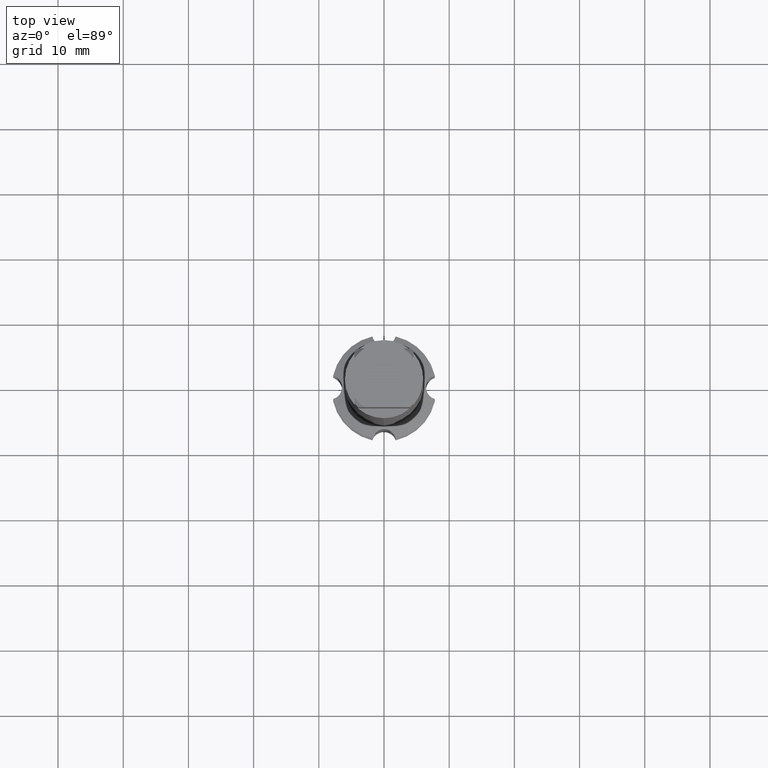
[diagram: clean part render]
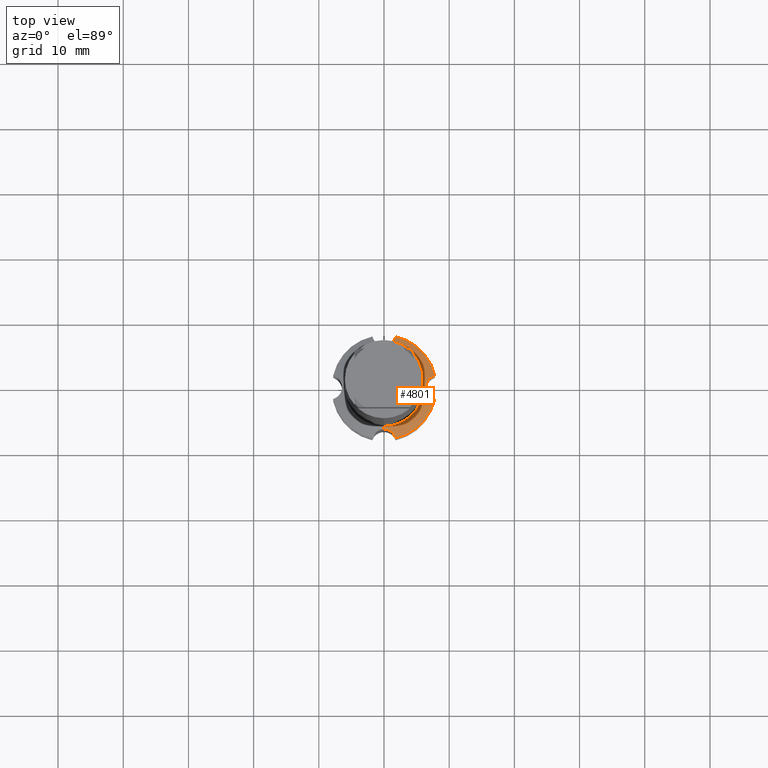
[diagram: same view with one face highlighted and labeled with its STEP entity id]
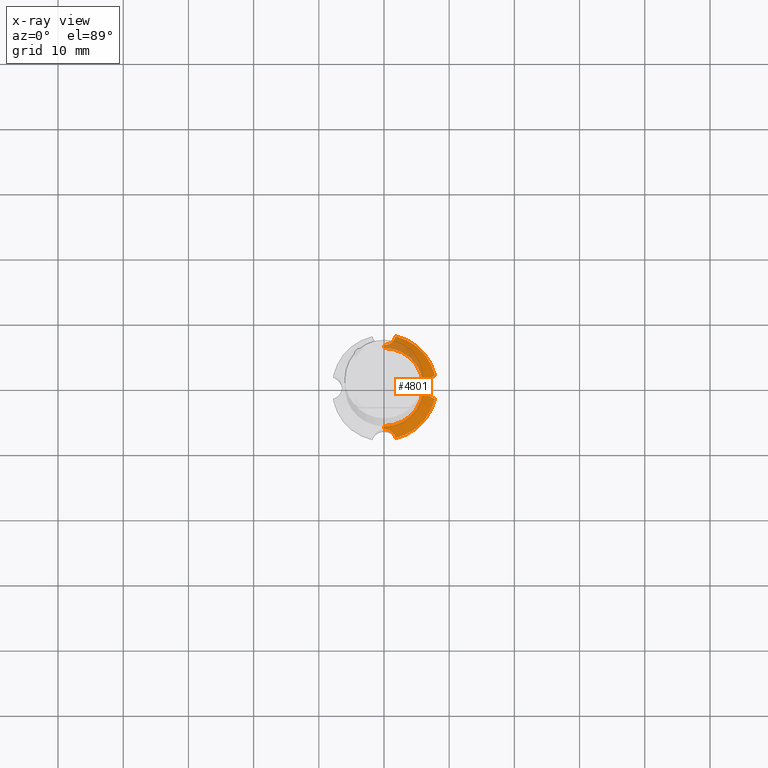
[diagram: x-ray of the same camera — body ghosted, the highlighted face saturated]
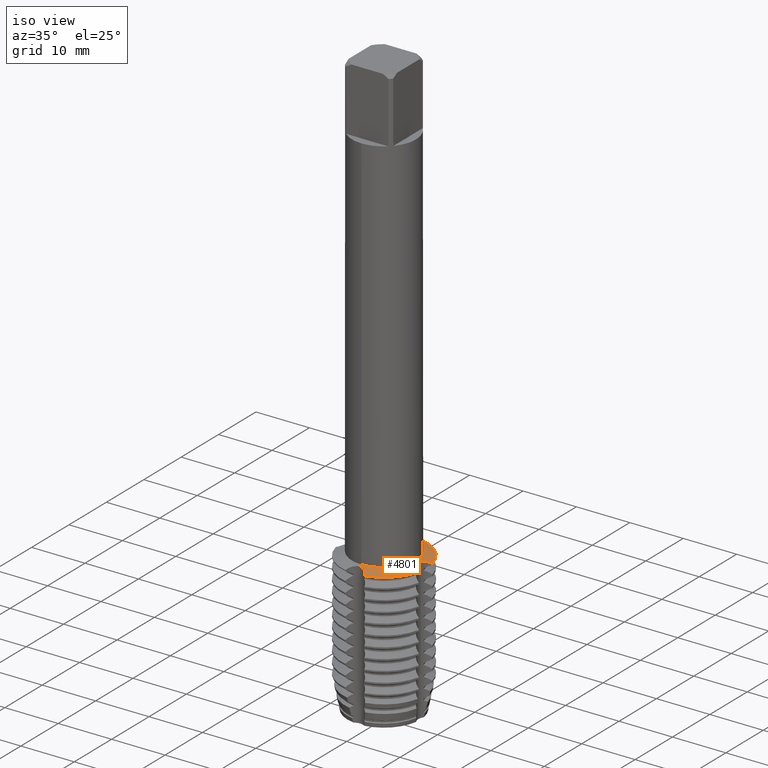
[diagram: same view with one face highlighted and labeled with its STEP entity id]
A machine part, top view. The second image highlights one B-rep face of the part: STEP entity #4801.
The next image is the same camera in x-ray: the body ghosted, the highlighted face saturated — about 19% of this face is hidden behind the body in this view.
A second angle (iso view) of the same face is appended — the face is thin or edge-on in the first view.
In plain terms, the highlighted conical surface has half-angle 70.158 deg.
Its self-contained STEP definition (entity closure, byte-faithful):
#1863=VERTEX_POINT('',#5108);
#1937=VERTEX_POINT('',#5188);
#1945=EDGE_CURVE('',#3605,#3453,#5197,.T.);
#2161=VERTEX_POINT('',#5432);
#2467=EDGE_CURVE('',#3963,#3453,#5763,.T.);
#2721=EDGE_CURVE('',#2161,#3605,#6041,.T.);
#2803=VERTEX_POINT('',#6136);
#3035=EDGE_CURVE('',#3963,#3225,#6387,.T.);
#3049=EDGE_CURVE('',#1937,#1863,#6402,.T.);
#3225=VERTEX_POINT('',#6591);
#3319=EDGE_CURVE('',#1937,#4679,#6691,.T.);
#3431=EDGE_CURVE('',#2161,#1863,#6809,.T.);
#3453=VERTEX_POINT('',#6835);
#3605=VERTEX_POINT('',#6997);
#3963=VERTEX_POINT('',#7385);
#4305=EDGE_CURVE('',#2803,#3225,#7757,.T.);
#4373=EDGE_CURVE('',#2803,#4679,#7832,.T.);
#4679=VERTEX_POINT('',#8166);
#4801=ADVANCED_FACE('',(#8300),#8301,.T.);
#5108=CARTESIAN_POINT('',(1.77972067254717,-7.79952526297007,-84.0));
#5188=CARTESIAN_POINT('',(-1.29385885950753E-010,-6.44546894861391,-83.4390569243866));
#5197=B_SPLINE_CURVE_WITH_KNOTS('',3,(#8984,#8985,#8986,#8987,#8988,#8989,#8990,#8991,#8992,#8993,#8994,#8995,#8996,#8997,#8998,#8999,#9000,#9001),.UNSPECIFIED.,.F.,.F.,(4,2,2,2,2,2,2,2,4),(0.0,0.743907113125739,1.46095810134954,2.09713409270997,2.58940129921737,3.11455659787823,3.83983705860915,4.47842155471413,5.00062197485743),.UNSPECIFIED.);
#5432=CARTESIAN_POINT('',(7.79952526297007,-1.77972067254717,-84.0));
#5763=CIRCLE('',#10158,8.0);
#6041=B_SPLINE_CURVE_WITH_KNOTS('',3,(#10638,#10639,#10640,#10641,#10642,#10643,#10644,#10645,#10646,#10647,#10648,#10649,#10650,#10651,#10652,#10653,#10654,#10655),.UNSPECIFIED.,.F.,.F.,(4,2,2,2,2,2,2,2,4),(0.0,0.743907113125739,1.46095810134954,2.09713409270997,2.58940129921737,3.11455659787823,3.83983705860915,4.47842155471413,5.00062197485743),.UNSPECIFIED.);
#6136=CARTESIAN_POINT('',(0.0,6.0,-83.278312163513));
#6387=B_SPLINE_CURVE_WITH_KNOTS('',3,(#11284,#11285,#11286,#11287,#11288,#11289,#11290,#11291,#11292,#11293,#11294,#11295,#11296,#11297,#11298,#11299,#11300,#11301),.UNSPECIFIED.,.F.,.F.,(4,2,2,2,2,2,2,2,4),(0.0,0.743907113125749,1.46095810134953,2.09713409270993,2.5894012992172,3.11455659787783,3.83983705860852,4.47842155471322,5.00062197485644),.UNSPECIFIED.);
#6402=B_SPLINE_CURVE_WITH_KNOTS('',3,(#11318,#11319,#11320,#11321,#11322,#11323,#11324,#11325,#11326,#11327,#11328,#11329,#11330,#11331,#11332,#11333,#11334,#11335),.UNSPECIFIED.,.F.,.F.,(4,2,2,2,2,2,2,2,4),(0.0,0.743907113125749,1.46095810134953,2.09713409270988,2.58940129921727,3.1145565978782,3.83983705860934,4.47842155471449,5.00062197485792),.UNSPECIFIED.);
#6591=CARTESIAN_POINT('',(1.29385825797603E-010,6.44546894861392,-83.4390569243866));
#6691=LINE('',#11926,#11927);
#6809=CIRCLE('',#12148,8.0);
#6835=CARTESIAN_POINT('',(7.79952526297007,1.77972067254717,-84.0));
#6997=CARTESIAN_POINT('',(6.44546894861391,-1.29387696714834E-010,-83.4390569243866));
#7385=CARTESIAN_POINT('',(1.77972067254717,7.79952526297007,-84.0));
#7757=LINE('',#13921,#13922);
#7832=CIRCLE('',#14049,6.0);
#8166=CARTESIAN_POINT('',(7.34763812293426E-016,-6.0,-83.278312163513));
#8300=FACE_OUTER_BOUND('',#15011,.T.);
#8301=CONICAL_SURFACE('',#15012,7.0,1.22449385246993);
#8984=CARTESIAN_POINT('',(7.79952526297008,-1.77972067254717,-84.0));
#8985=CARTESIAN_POINT('',(7.57333519677747,-1.72274788460475,-83.9158525160687));
#8986=CARTESIAN_POINT('',(7.36037883649537,-1.62246393047004,-83.8327188840648));
#8987=CARTESIAN_POINT('',(6.99022538646825,-1.34561552245522,-83.6817034979369));
#8988=CARTESIAN_POINT('',(6.83488275768263,-1.17452622721383,-83.6148861639171));
#8989=CARTESIAN_POINT('',(6.60800776130368,-0.799180942026867,-83.5143954223688));
#8990=CARTESIAN_POINT('',(6.53091235472515,-0.603991438880801,-83.4788132489954));
#8991=CARTESIAN_POINT('',(6.45336365993818,-0.238770410104933,-83.4428107146941));
#8992=CARTESIAN_POINT('',(6.43999079202227,-0.0752486855563723,-83.4364916322954));
#8993=CARTESIAN_POINT('',(6.4554923082499,0.26250437608726,-83.4437512278865));
#8994=CARTESIAN_POINT('',(6.48713438325891,0.434249049539478,-83.4586334954057));
#8995=CARTESIAN_POINT('',(6.61612351856246,0.824930968066917,-83.5178261958042));
#8996=CARTESIAN_POINT('',(6.73231569564685,1.03209495738231,-83.5703604888762));
#8997=CARTESIAN_POINT('',(7.01513130317356,1.3654533470297,-83.6916903805701));
#8998=CARTESIAN_POINT('',(7.17180116171571,1.49572585621941,-83.7567395740589));
#8999=CARTESIAN_POINT('',(7.48834961657399,1.67838946384341,-83.8823552169842));
#9000=CARTESIAN_POINT('',(7.64085740152842,1.73975538770794,-83.9409722029538));
#9001=CARTESIAN_POINT('',(7.79952526297008,1.77972067254717,-84.0));
#10158=AXIS2_PLACEMENT_3D('',#16253,#16254,#16255);
#10638=CARTESIAN_POINT('',(7.79952526297008,-1.77972067254717,-84.0));
#10639=CARTESIAN_POINT('',(7.57333519677747,-1.72274788460475,-83.9158525160687));
#10640=CARTESIAN_POINT('',(7.36037883649537,-1.62246393047004,-83.8327188840648));
#10641=CARTESIAN_POINT('',(6.99022538646825,-1.34561552245522,-83.6817034979369));
#10642=CARTESIAN_POINT('',(6.83488275768263,-1.17452622721383,-83.6148861639171));
#10643=CARTESIAN_POINT('',(6.60800776130368,-0.799180942026867,-83.5143954223688));
#10644=CARTESIAN_POINT('',(6.53091235472515,-0.603991438880801,-83.4788132489954));
#10645=CARTESIAN_POINT('',(6.45336365993818,-0.238770410104933,-83.4428107146941));
#10646=CARTESIAN_POINT('',(6.43999079202227,-0.0752486855563723,-83.4364916322954));
#10647=CARTESIAN_POINT('',(6.4554923082499,0.26250437608726,-83.4437512278865));
#10648=CARTESIAN_POINT('',(6.48713438325891,0.434249049539478,-83.4586334954057));
#10649=CARTESIAN_POINT('',(6.61612351856246,0.824930968066917,-83.5178261958042));
#10650=CARTESIAN_POINT('',(6.73231569564685,1.03209495738231,-83.5703604888762));
#10651=CARTESIAN_POINT('',(7.01513130317356,1.3654533470297,-83.6916903805701));
#10652=CARTESIAN_POINT('',(7.17180116171571,1.49572585621941,-83.7567395740589));
#10653=CARTESIAN_POINT('',(7.48834961657399,1.67838946384341,-83.8823552169842));
#10654=CARTESIAN_POINT('',(7.64085740152842,1.73975538770794,-83.9409722029538));
#10655=CARTESIAN_POINT('',(7.79952526297008,1.77972067254717,-84.0));
#11284=CARTESIAN_POINT('',(1.77972067254717,7.79952526297006,-84.0));
#11285=CARTESIAN_POINT('',(1.72274788460474,7.57333519677745,-83.9158525160687));
#11286=CARTESIAN_POINT('',(1.62246393047002,7.36037883649535,-83.8327188840648));
#11287=CARTESIAN_POINT('',(1.34561552245521,6.99022538646825,-83.6817034979369));
#11288=CARTESIAN_POINT('',(1.17452622721381,6.83488275768263,-83.6148861639171));
#11289=CARTESIAN_POINT('',(0.799180942026838,6.60800776130368,-83.5143954223688));
#11290=CARTESIAN_POINT('',(0.603991438880808,6.53091235472516,-83.4788132489954));
#11291=CARTESIAN_POINT('',(0.238770410105053,6.4533636599382,-83.4428107146942));
#11292=CARTESIAN_POINT('',(0.0752486855564631,6.43999079202228,-83.4364916322954));
#11293=CARTESIAN_POINT('',(-0.262504376087204,6.4554923082499,-83.4437512278865));
#11294=CARTESIAN_POINT('',(-0.434249049539422,6.4871343832589,-83.4586334954057));
#11295=CARTESIAN_POINT('',(-0.824930968066851,6.61612351856243,-83.5178261958042));
#11296=CARTESIAN_POINT('',(-1.03209495738225,6.73231569564682,-83.5703604888761));
#11297=CARTESIAN_POINT('',(-1.36545334702966,7.01513130317352,-83.6916903805701));
#11298=CARTESIAN_POINT('',(-1.49572585621937,7.17180116171566,-83.7567395740589));
#11299=CARTESIAN_POINT('',(-1.67838946384338,7.48834961657393,-83.8823552169842));
#11300=CARTESIAN_POINT('',(-1.73975538770792,7.64085740152839,-83.9409722029538));
#11301=CARTESIAN_POINT('',(-1.77972067254716,7.79952526297006,-84.0));
#11318=CARTESIAN_POINT('',(-1.77972067254718,-7.79952526297008,-84.0));
#11319=CARTESIAN_POINT('',(-1.72274788460475,-7.57333519677746,-83.9158525160687));
#11320=CARTESIAN_POINT('',(-1.62246393047004,-7.36037883649537,-83.8327188840648));
#11321=CARTESIAN_POINT('',(-1.34561552245523,-6.99022538646826,-83.6817034979369));
#11322=CARTESIAN_POINT('',(-1.17452622721384,-6.83488275768263,-83.6148861639171));
#11323=CARTESIAN_POINT('',(-0.799180942026883,-6.60800776130369,-83.5143954223688));
#11324=CARTESIAN_POINT('',(-0.603991438880815,-6.53091235472515,-83.4788132489953));
#11325=CARTESIAN_POINT('',(-0.238770410104924,-6.45336365993817,-83.4428107146941));
#11326=CARTESIAN_POINT('',(-0.0752486855563721,-6.43999079202227,-83.4364916322954));
#11327=CARTESIAN_POINT('',(0.262504376087265,-6.45549230824989,-83.4437512278865));
#11328=CARTESIAN_POINT('',(0.434249049539494,-6.48713438325891,-83.4586334954057));
#11329=CARTESIAN_POINT('',(0.824930968066907,-6.61612351856245,-83.5178261958042));
#11330=CARTESIAN_POINT('',(1.0320949573823,-6.73231569564684,-83.5703604888762));
#11331=CARTESIAN_POINT('',(1.36545334702968,-7.01513130317354,-83.6916903805701));
#11332=CARTESIAN_POINT('',(1.4957258562194,-7.17180116171569,-83.7567395740589));
#11333=CARTESIAN_POINT('',(1.67838946384341,-7.48834961657398,-83.8823552169842));
#11334=CARTESIAN_POINT('',(1.73975538770794,-7.64085740152842,-83.9409722029538));
#11335=CARTESIAN_POINT('',(1.77972067254717,-7.79952526297008,-84.0));
#11926=CARTESIAN_POINT('',(8.57224447675664E-016,-7.0,-83.6391560817565));
#11927=VECTOR('',#17111,1.0);
#12148=AXIS2_PLACEMENT_3D('',#17204,#17205,#17206);
#13921=CARTESIAN_POINT('',(-8.57224447675664E-016,7.0,-83.6391560817565));
#13922=VECTOR('',#18273,1.0);
#14049=AXIS2_PLACEMENT_3D('',#18358,#18359,#18360);
#15011=EDGE_LOOP('',(#18807,#18808,#18809,#18810,#18811,#18812,#18813,#18814,#18815));
#15012=AXIS2_PLACEMENT_3D('',#18816,#18817,#18818);
#16253=CARTESIAN_POINT('',(0.0,0.0,-84.0));
#16254=DIRECTION('',(0.0,0.0,-1.0));
#16255=DIRECTION('',(0.0,1.0,0.0));
#17111=DIRECTION('',(-1.15190657141193E-016,0.940634162003545,0.339422116651065));
#17204=CARTESIAN_POINT('',(0.0,0.0,-84.0));
#17205=DIRECTION('',(0.0,0.0,-1.0));
#17206=DIRECTION('',(0.0,1.0,0.0));
#18273=DIRECTION('',(-1.15190657141193E-016,0.940634162003545,-0.339422116651065));
#18358=CARTESIAN_POINT('',(0.0,0.0,-83.278312163513));
#18359=DIRECTION('',(0.0,0.0,-1.0));
#18360=DIRECTION('',(0.0,1.0,0.0));
#18807=ORIENTED_EDGE('',*,*,#4305,.F.);
#18808=ORIENTED_EDGE('',*,*,#4373,.T.);
#18809=ORIENTED_EDGE('',*,*,#3319,.F.);
#18810=ORIENTED_EDGE('',*,*,#3049,.T.);
#18811=ORIENTED_EDGE('',*,*,#3431,.F.);
#18812=ORIENTED_EDGE('',*,*,#2721,.T.);
#18813=ORIENTED_EDGE('',*,*,#1945,.T.);
#18814=ORIENTED_EDGE('',*,*,#2467,.F.);
#18815=ORIENTED_EDGE('',*,*,#3035,.T.);
#18816=CARTESIAN_POINT('',(0.0,0.0,-83.6391560817565));
#18817=DIRECTION('',(0.0,-0.0,-1.0));
#18818=DIRECTION('',(0.0,1.0,0.0));